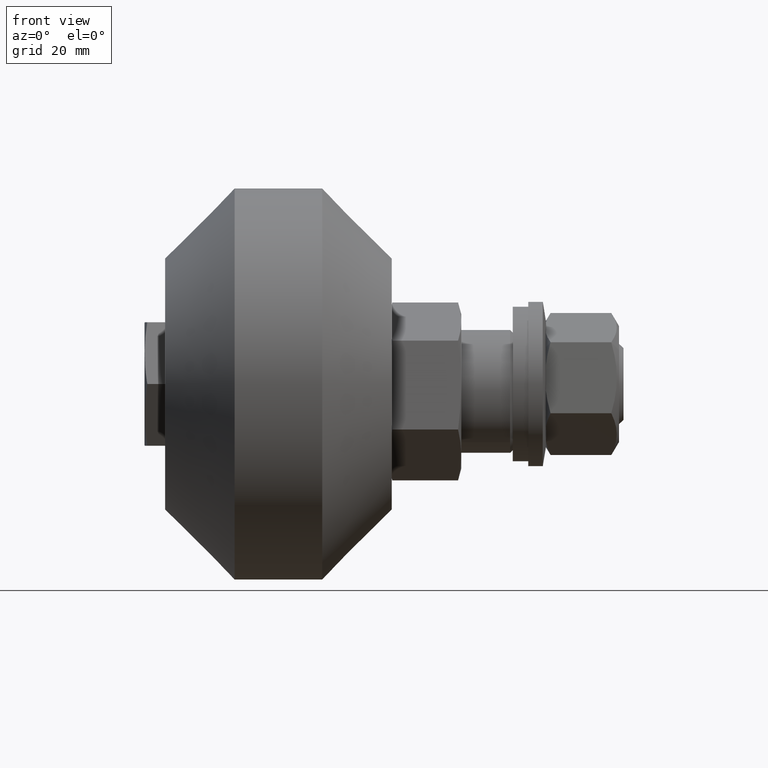
[diagram: clean part render]
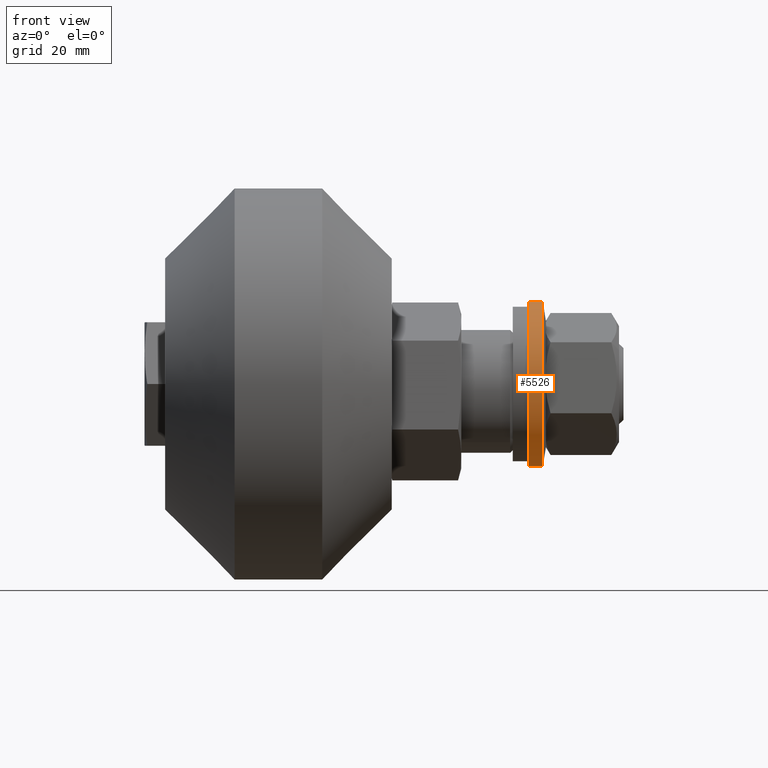
[diagram: same view with one face highlighted and labeled with its STEP entity id]
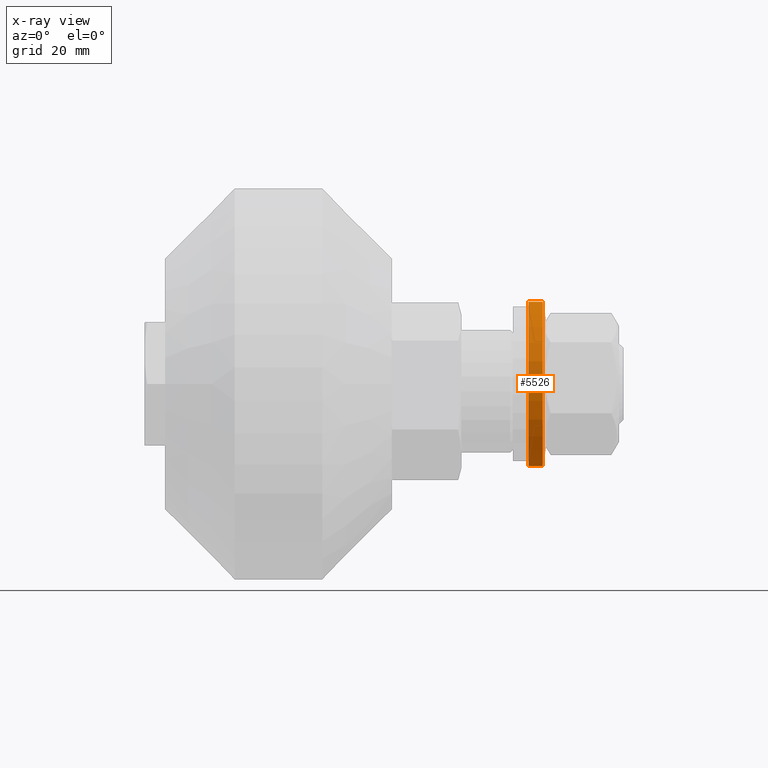
[diagram: x-ray of the same camera — body ghosted, the highlighted face saturated]
A machine part, front view. The second image highlights one B-rep face of the part: STEP entity #5526.
The next image is the same camera in x-ray: the body ghosted, the highlighted face saturated — about 0% of this face is hidden behind the body in this view.
In plain terms, the highlighted cylindrical surface (bore or boss wall) has radius 16 mm, axis along (-1, -0, -0).
Its self-contained STEP definition (entity closure, byte-faithful):
#579=CYLINDRICAL_SURFACE('',#6227,16.);
#794=FACE_OUTER_BOUND('',#1095,.T.);
#1095=EDGE_LOOP('',(#4748,#4749,#4750,#4751));
#1488=LINE('',#9457,#1806);
#1806=VECTOR('',#7509,16.);
#1993=CIRCLE('',#6159,16.);
#2057=CIRCLE('',#6228,16.);
#2554=VERTEX_POINT('',#9366);
#2562=VERTEX_POINT('',#9455);
#3254=EDGE_CURVE('',#2554,#2554,#1993,.T.);
#3326=EDGE_CURVE('',#2562,#2562,#2057,.T.);
#3327=EDGE_CURVE('',#2562,#2554,#1488,.T.);
#4748=ORIENTED_EDGE('',*,*,#3326,.F.);
#4749=ORIENTED_EDGE('',*,*,#3327,.T.);
#4750=ORIENTED_EDGE('',*,*,#3254,.T.);
#4751=ORIENTED_EDGE('',*,*,#3327,.F.);
#5526=ADVANCED_FACE('',(#794),#579,.T.);
#6159=AXIS2_PLACEMENT_3D('',#9367,#7363,#7364);
#6227=AXIS2_PLACEMENT_3D('',#9454,#7505,#7506);
#6228=AXIS2_PLACEMENT_3D('',#9456,#7507,#7508);
#7363=DIRECTION('center_axis',(0.,-1.,0.));
#7364=DIRECTION('ref_axis',(1.,0.,0.));
#7505=DIRECTION('center_axis',(0.,-1.,0.));
#7506=DIRECTION('ref_axis',(1.,0.,0.));
#7507=DIRECTION('center_axis',(0.,-1.,0.));
#7508=DIRECTION('ref_axis',(1.,0.,0.));
#7509=DIRECTION('',(0.,1.,0.));
#9366=CARTESIAN_POINT('',(-16.,2.83649802373922,-1.95943487863577E-15));
#9367=CARTESIAN_POINT('Origin',(0.,2.83649802373922,0.));
#9454=CARTESIAN_POINT('Origin',(0.,1.41824901186961,0.));
#9455=CARTESIAN_POINT('',(-16.,0.,-1.95943487863577E-15));
#9456=CARTESIAN_POINT('Origin',(0.,0.,0.));
#9457=CARTESIAN_POINT('',(-16.,1.41824901186961,-1.95943487863577E-15));